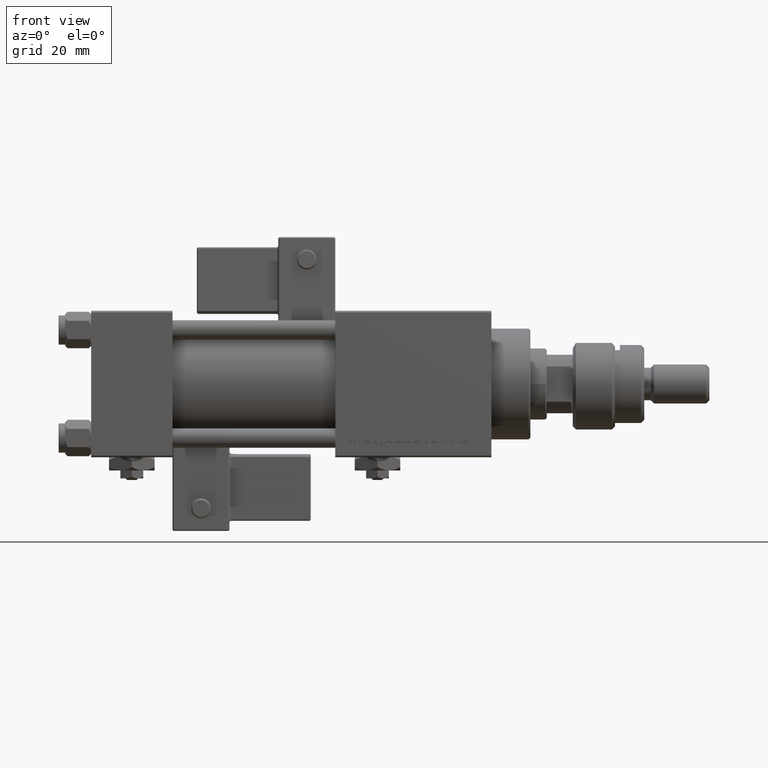
[diagram: clean part render]
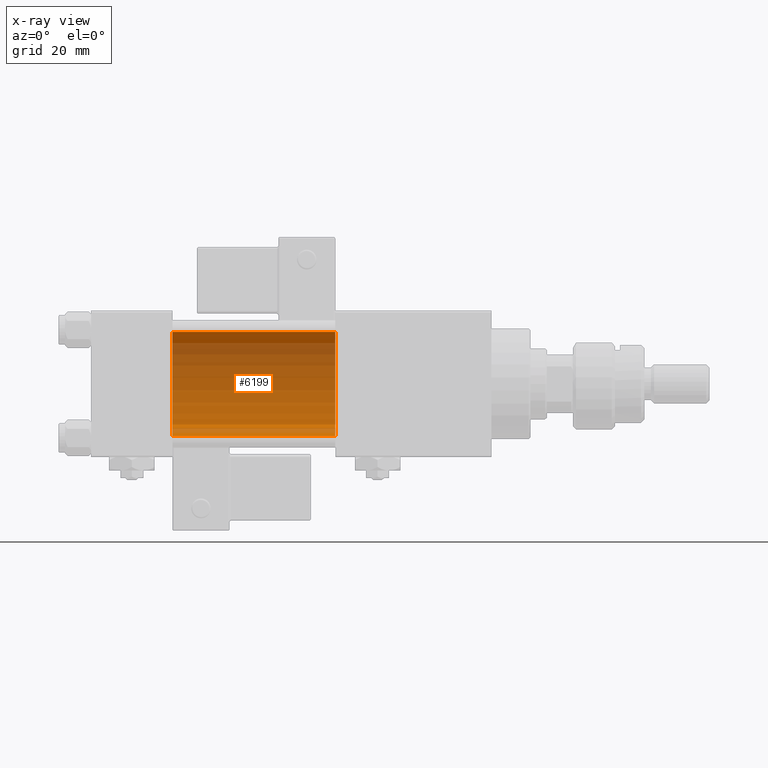
[diagram: x-ray — body ghosted, one internal face saturated and labeled with its STEP entity id]
A machine part, front view, then the same camera in x-ray: the body is ghosted and one INTERNAL B-rep face — a face not visible from any outside direction — is saturated and labeled: STEP entity #6199.
In plain terms, the highlighted cylindrical surface (partial cylindrical patch) has radius 16 mm, axis along (-1, -0, -0).
Its self-contained STEP definition (entity closure, byte-faithful):
#957 = VERTEX_POINT ( 'NONE', #47270 ) ;
#1544 = VERTEX_POINT ( 'NONE', #11096 ) ;
#3864 = CARTESIAN_POINT ( 'NONE',  ( 75.00000000000001421, -2.602085213965210642E-15, 16.00000000000000000 ) ) ;
#4285 = EDGE_CURVE ( 'NONE', #1544, #957, #18490, .T. ) ;
#6199 = ADVANCED_FACE ( 'NONE', ( #37442 ), #11762, .F. ) ;
#11096 = CARTESIAN_POINT ( 'NONE',  ( 75.00000000000001421, -6.426503353294456087E-16, -16.00000000000000000 ) ) ;
#11433 = DIRECTION ( 'NONE',  ( -1.000000000000000000, -0.000000000000000000, -0.000000000000000000 ) ) ;
#11762 = CYLINDRICAL_SURFACE ( 'NONE', #32646, 16.00000000000000000 ) ;
#15135 = CIRCLE ( 'NONE', #24134, 16.00000000000000000 ) ;
#15997 = DIRECTION ( 'NONE',  ( 0.000000000000000000, 0.000000000000000000, 1.000000000000000000 ) ) ;
#16453 = EDGE_LOOP ( 'NONE', ( #40258, #31612, #22541, #20544 ) ) ;
#17625 = DIRECTION ( 'NONE',  ( 0.000000000000000000, 0.000000000000000000, -1.000000000000000000 ) ) ;
#18490 = LINE ( 'NONE', #26398, #41579 ) ;
#19398 = CIRCLE ( 'NONE', #52737, 16.00000000000000000 ) ;
#20544 = ORIENTED_EDGE ( 'NONE', *, *, #43502, .F. ) ;
#21066 = DIRECTION ( 'NONE',  ( -1.000000000000000000, -0.000000000000000000, -0.000000000000000000 ) ) ;
#21411 = VECTOR ( 'NONE', #21066, 1000.000000000000000 ) ;
#22541 = ORIENTED_EDGE ( 'NONE', *, *, #47042, .T. ) ;
#23216 = DIRECTION ( 'NONE',  ( 1.000000000000000000, 0.000000000000000000, 0.000000000000000000 ) ) ;
#24134 = AXIS2_PLACEMENT_3D ( 'NONE', #40155, #23216, #48039 ) ;
#26398 = CARTESIAN_POINT ( 'NONE',  ( 75.00000000000001421, -6.426503353294456087E-16, -16.00000000000000000 ) ) ;
#29573 = VERTEX_POINT ( 'NONE', #43148 ) ;
#31612 = ORIENTED_EDGE ( 'NONE', *, *, #41933, .T. ) ;
#32646 = AXIS2_PLACEMENT_3D ( 'NONE', #54903, #54072, #15997 ) ;
#34583 = CARTESIAN_POINT ( 'NONE',  ( 75.00000000000001421, -2.602085213965210642E-15, 0.000000000000000000 ) ) ;
#36370 = CARTESIAN_POINT ( 'NONE',  ( 25.00000000000000000, -2.602085213965210642E-15, 16.00000000000000000 ) ) ;
#37442 = FACE_OUTER_BOUND ( 'NONE', #16453, .T. ) ;
#38531 = DIRECTION ( 'NONE',  ( 1.000000000000000000, 0.000000000000000000, 0.000000000000000000 ) ) ;
#40155 = CARTESIAN_POINT ( 'NONE',  ( 25.00000000000000000, -2.602085213965210642E-15, 0.000000000000000000 ) ) ;
#40258 = ORIENTED_EDGE ( 'NONE', *, *, #4285, .F. ) ;
#41579 = VECTOR ( 'NONE', #11433, 1000.000000000000000 ) ;
#41933 = EDGE_CURVE ( 'NONE', #1544, #29573, #19398, .T. ) ;
#43148 = CARTESIAN_POINT ( 'NONE',  ( 75.00000000000001421, -2.602085213965210642E-15, 16.00000000000000000 ) ) ;
#43502 = EDGE_CURVE ( 'NONE', #957, #55743, #15135, .T. ) ;
#45904 = LINE ( 'NONE', #3864, #21411 ) ;
#47042 = EDGE_CURVE ( 'NONE', #29573, #55743, #45904, .T. ) ;
#47270 = CARTESIAN_POINT ( 'NONE',  ( 25.00000000000000000, -6.426503353294456087E-16, -16.00000000000000000 ) ) ;
#48039 = DIRECTION ( 'NONE',  ( 0.000000000000000000, 0.000000000000000000, -1.000000000000000000 ) ) ;
#52737 = AXIS2_PLACEMENT_3D ( 'NONE', #34583, #38531, #17625 ) ;
#54072 = DIRECTION ( 'NONE',  ( -1.000000000000000000, -0.000000000000000000, -0.000000000000000000 ) ) ;
#54903 = CARTESIAN_POINT ( 'NONE',  ( 75.00000000000001421, -2.602085213965210642E-15, 0.000000000000000000 ) ) ;
#55743 = VERTEX_POINT ( 'NONE', #36370 ) ;